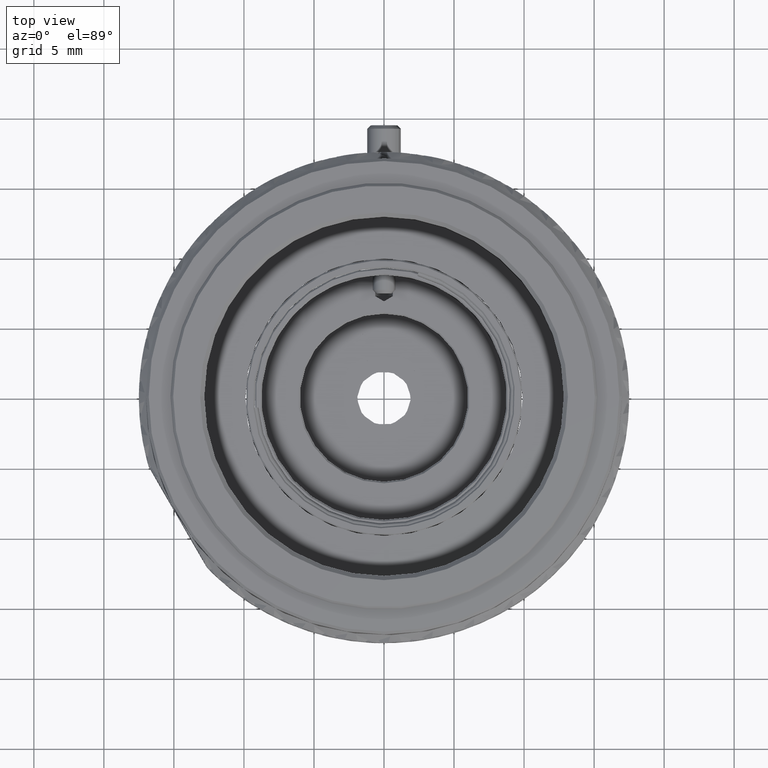
[diagram: clean part render]
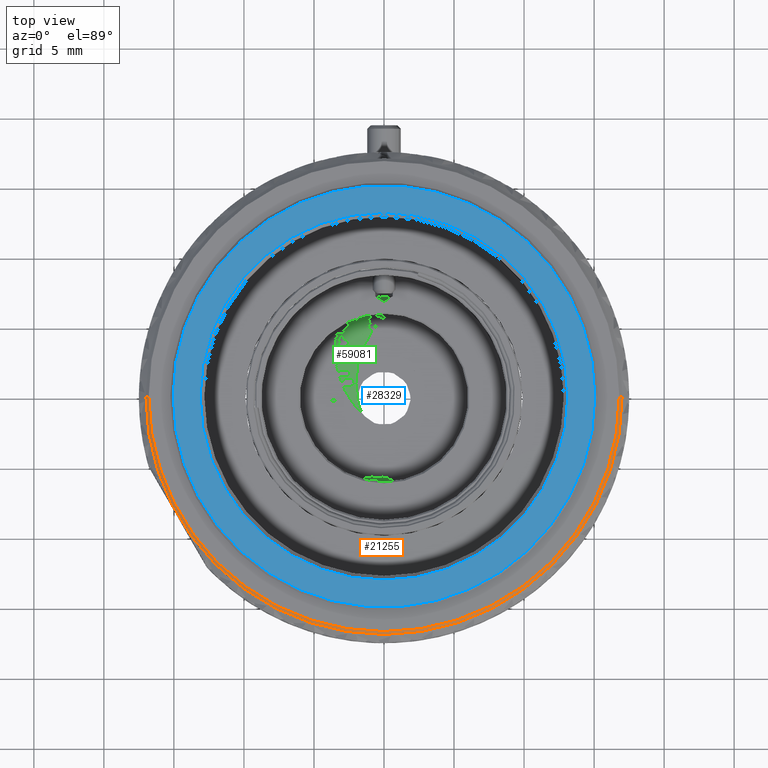
[diagram: same view with three faces highlighted in distinct colors, each labeled with its STEP entity id]
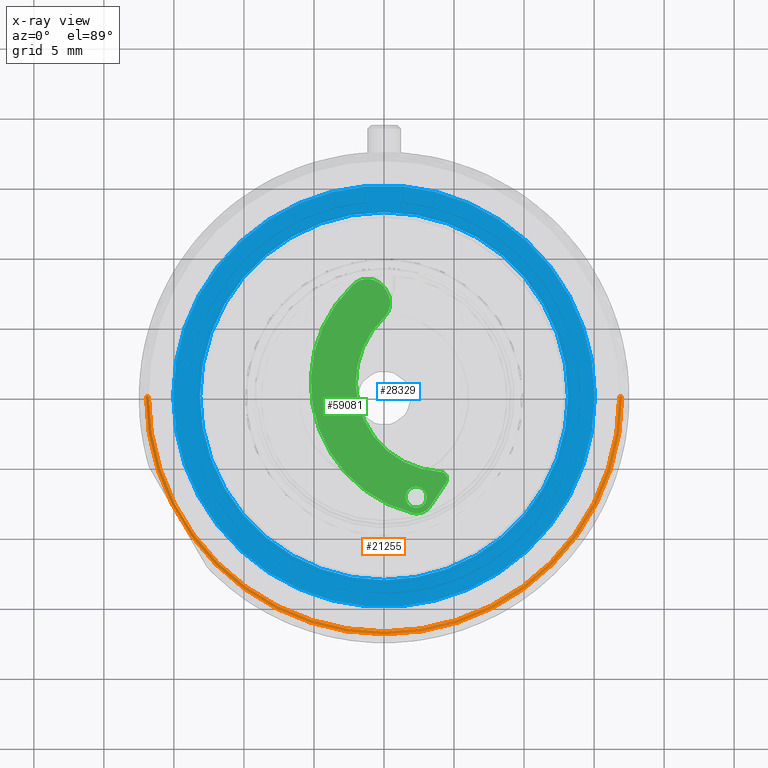
[diagram: x-ray of the same camera — body ghosted, the three highlighted faces saturated]
A machine part, top view with three faces highlighted in distinct colors.
The next image is the same camera in x-ray (body ghosted, the three faces saturated) — at least one of them is partly hidden behind the body in this view.
Their STEP definitions:

[orange] entity #21255 — the highlighted conical surface has half-angle 45 deg.
#1981 = FACE_OUTER_BOUND ( 'NONE', #70237, .T. ) ;
#5613 = CARTESIAN_POINT ( 'NONE',  ( -8.043846907927924015E-15, -2.054373064707883438E-14, 11.30000000000000071 ) ) ;
#7619 = ORIENTED_EDGE ( 'NONE', *, *, #48998, .F. ) ;
#8780 = DIRECTION ( 'NONE',  ( -0.7071067811865414665, 0.000000000000000000, -0.7071067811865536790 ) ) ;
#13270 = CARTESIAN_POINT ( 'NONE',  ( 16.80000000000000071, -1.847407755651980470E-14, 11.50000000000000000 ) ) ;
#13462 = ORIENTED_EDGE ( 'NONE', *, *, #33184, .T. ) ;
#14536 = EDGE_CURVE ( 'NONE', #42608, #80266, #46439, .T. ) ;
#15947 = CONICAL_SURFACE ( 'NONE', #40525, 16.80000000000000782, 0.7853981633974396193 ) ;
#17588 = VECTOR ( 'NONE', #49711, 1000.000000000000000 ) ;
#18491 = DIRECTION ( 'NONE',  ( 1.000000000000000000, 0.000000000000000000, 0.000000000000000000 ) ) ;
#20895 = DIRECTION ( 'NONE',  ( -1.000000000000000000, 0.000000000000000000, 0.000000000000000000 ) ) ;
#21255 = ADVANCED_FACE ( 'NONE', ( #1981 ), #15947, .T. ) ;
#22711 = CARTESIAN_POINT ( 'NONE',  ( -16.80000000000001492, -2.054373064707883438E-14, 11.50000000000000000 ) ) ;
#25403 = VECTOR ( 'NONE', #8780, 1000.000000000000000 ) ;
#25628 = CIRCLE ( 'NONE', #36531, 17.00000000000000355 ) ;
#32406 = ORIENTED_EDGE ( 'NONE', *, *, #14536, .F. ) ;
#33184 = EDGE_CURVE ( 'NONE', #42608, #54698, #61173, .T. ) ;
#33640 = DIRECTION ( 'NONE',  ( 0.000000000000000000, 0.000000000000000000, -1.000000000000000000 ) ) ;
#36531 = AXIS2_PLACEMENT_3D ( 'NONE', #5613, #43708, #18491 ) ;
#38728 = VERTEX_POINT ( 'NONE', #83481 ) ;
#39646 = CARTESIAN_POINT ( 'NONE',  ( -8.043846907927924015E-15, -2.054373064707883438E-14, 11.50000000000000000 ) ) ;
#40525 = AXIS2_PLACEMENT_3D ( 'NONE', #39646, #33640, #20895 ) ;
#42608 = VERTEX_POINT ( 'NONE', #22711 ) ;
#43708 = DIRECTION ( 'NONE',  ( 0.000000000000000000, 0.000000000000000000, -1.000000000000000000 ) ) ;
#46439 = CIRCLE ( 'NONE', #47801, 16.80000000000000782 ) ;
#47548 = DIRECTION ( 'NONE',  ( 1.000000000000000000, 0.000000000000000000, 0.000000000000000000 ) ) ;
#47801 = AXIS2_PLACEMENT_3D ( 'NONE', #60898, #80669, #47548 ) ;
#48887 = CARTESIAN_POINT ( 'NONE',  ( 16.80000000000000071, -1.848632402451127569E-14, 11.50000000000000000 ) ) ;
#48998 = EDGE_CURVE ( 'NONE', #38728, #54698, #25628, .T. ) ;
#49711 = DIRECTION ( 'NONE',  ( 0.7071067811865414665, 8.659560562354857670E-17, -0.7071067811865536790 ) ) ;
#50690 = EDGE_CURVE ( 'NONE', #80266, #38728, #68731, .T. ) ;
#54698 = VERTEX_POINT ( 'NONE', #63532 ) ;
#60323 = CARTESIAN_POINT ( 'NONE',  ( -16.80000000000001492, -2.054373064707883438E-14, 11.50000000000000000 ) ) ;
#60898 = CARTESIAN_POINT ( 'NONE',  ( -8.043846907927924015E-15, -2.054373064707883438E-14, 11.50000000000000000 ) ) ;
#61173 = LINE ( 'NONE', #60323, #25403 ) ;
#63532 = CARTESIAN_POINT ( 'NONE',  ( -17.00000000000001066, -2.054373064707883438E-14, 11.30000000000000071 ) ) ;
#68731 = LINE ( 'NONE', #48887, #17588 ) ;
#70237 = EDGE_LOOP ( 'NONE', ( #70564, #32406, #13462, #7619 ) ) ;
#70564 = ORIENTED_EDGE ( 'NONE', *, *, #50690, .F. ) ;
#80266 = VERTEX_POINT ( 'NONE', #13270 ) ;
#80669 = DIRECTION ( 'NONE',  ( 0.000000000000000000, 0.000000000000000000, 1.000000000000000000 ) ) ;
#83481 = CARTESIAN_POINT ( 'NONE',  ( 16.99999999999999645, -1.846183108852833055E-14, 11.30000000000000071 ) ) ;

[blue] entity #28329 — the highlighted planar face has unit normal (0, 0, 1).
#3692 = ORIENTED_EDGE ( 'NONE', *, *, #49986, .T. ) ;
#3756 = ORIENTED_EDGE ( 'NONE', *, *, #79034, .T. ) ;
#7274 = CARTESIAN_POINT ( 'NONE',  ( 15.05000000000000249, 1.855339900708240413E-15, 11.69999999999999929 ) ) ;
#9044 = DIRECTION ( 'NONE',  ( 1.000000000000000000, 0.000000000000000000, 0.000000000000000000 ) ) ;
#9793 = AXIS2_PLACEMENT_3D ( 'NONE', #62465, #75327, #49481 ) ;
#9829 = EDGE_LOOP ( 'NONE', ( #22816, #3756 ) ) ;
#11073 = AXIS2_PLACEMENT_3D ( 'NONE', #76095, #49424, #69278 ) ;
#11624 = AXIS2_PLACEMENT_3D ( 'NONE', #22348, #49719, #35984 ) ;
#20182 = FACE_OUTER_BOUND ( 'NONE', #35167, .T. ) ;
#22348 = CARTESIAN_POINT ( 'NONE',  ( 0.000000000000000000, 0.000000000000000000, 11.69999999999999929 ) ) ;
#22816 = ORIENTED_EDGE ( 'NONE', *, *, #66485, .T. ) ;
#26098 = PLANE ( 'NONE',  #67245 ) ;
#28084 = CARTESIAN_POINT ( 'NONE',  ( -13.12999999999999723, 1.607961247280474578E-15, 11.69999999999999929 ) ) ;
#28329 = ADVANCED_FACE ( 'NONE', ( #20182, #46259 ), #26098, .T. ) ;
#28992 = VERTEX_POINT ( 'NONE', #73492 ) ;
#35167 = EDGE_LOOP ( 'NONE', ( #84351, #3692 ) ) ;
#35352 = EDGE_CURVE ( 'NONE', #28992, #74320, #76058, .T. ) ;
#35984 = DIRECTION ( 'NONE',  ( 1.000000000000000000, 0.000000000000000000, 0.000000000000000000 ) ) ;
#46259 = FACE_BOUND ( 'NONE', #9829, .T. ) ;
#46633 = CIRCLE ( 'NONE', #11073, 13.12999999999999723 ) ;
#49424 = DIRECTION ( 'NONE',  ( -0.000000000000000000, -0.000000000000000000, -1.000000000000000000 ) ) ;
#49481 = DIRECTION ( 'NONE',  ( 1.000000000000000000, 0.000000000000000000, 0.000000000000000000 ) ) ;
#49719 = DIRECTION ( 'NONE',  ( 0.000000000000000000, 0.000000000000000000, 1.000000000000000000 ) ) ;
#49986 = EDGE_CURVE ( 'NONE', #74320, #28992, #56056, .T. ) ;
#51872 = DIRECTION ( 'NONE',  ( 1.000000000000000000, 0.000000000000000000, -0.000000000000000000 ) ) ;
#56056 = CIRCLE ( 'NONE', #61556, 15.05000000000000249 ) ;
#58307 = CARTESIAN_POINT ( 'NONE',  ( 0.000000000000000000, 0.000000000000000000, 11.69999999999999929 ) ) ;
#60001 = VERTEX_POINT ( 'NONE', #28084 ) ;
#61556 = AXIS2_PLACEMENT_3D ( 'NONE', #80773, #73459, #9044 ) ;
#61792 = CARTESIAN_POINT ( 'NONE',  ( 13.12999999999999723, 0.000000000000000000, 11.69999999999999929 ) ) ;
#62465 = CARTESIAN_POINT ( 'NONE',  ( 0.000000000000000000, 0.000000000000000000, 11.69999999999999929 ) ) ;
#66485 = EDGE_CURVE ( 'NONE', #74510, #60001, #46633, .T. ) ;
#67245 = AXIS2_PLACEMENT_3D ( 'NONE', #58307, #84562, #51872 ) ;
#69278 = DIRECTION ( 'NONE',  ( 1.000000000000000000, 0.000000000000000000, 0.000000000000000000 ) ) ;
#73459 = DIRECTION ( 'NONE',  ( 0.000000000000000000, 0.000000000000000000, 1.000000000000000000 ) ) ;
#73492 = CARTESIAN_POINT ( 'NONE',  ( -15.05000000000000249, 0.000000000000000000, 11.69999999999999929 ) ) ;
#74202 = CIRCLE ( 'NONE', #9793, 13.12999999999999723 ) ;
#74320 = VERTEX_POINT ( 'NONE', #7274 ) ;
#74510 = VERTEX_POINT ( 'NONE', #61792 ) ;
#75327 = DIRECTION ( 'NONE',  ( -0.000000000000000000, -0.000000000000000000, -1.000000000000000000 ) ) ;
#76058 = CIRCLE ( 'NONE', #11624, 15.05000000000000249 ) ;
#76095 = CARTESIAN_POINT ( 'NONE',  ( 0.000000000000000000, 0.000000000000000000, 11.69999999999999929 ) ) ;
#79034 = EDGE_CURVE ( 'NONE', #60001, #74510, #74202, .T. ) ;
#80773 = CARTESIAN_POINT ( 'NONE',  ( 0.000000000000000000, 0.000000000000000000, 11.69999999999999929 ) ) ;
#84351 = ORIENTED_EDGE ( 'NONE', *, *, #35352, .T. ) ;
#84562 = DIRECTION ( 'NONE',  ( 0.000000000000000000, 0.000000000000000000, 1.000000000000000000 ) ) ;

[green] entity #59081 — the highlighted planar face has unit normal (0, 0, 1).
#134 = EDGE_CURVE ( 'NONE', #13093, #42448, #28821, .T. ) ;
#1354 = AXIS2_PLACEMENT_3D ( 'NONE', #62264, #83718, #63113 ) ;
#2603 = DIRECTION ( 'NONE',  ( -0.5376088796797792169, 0.8431943385065228114, -2.019442564335963875E-16 ) ) ;
#2855 = CIRCLE ( 'NONE', #11063, 0.5000000000000000000 ) ;
#4016 = DIRECTION ( 'NONE',  ( -2.498706937816809290E-16, -3.988131143977950206E-16, -1.000000000000000000 ) ) ;
#5569 = ORIENTED_EDGE ( 'NONE', *, *, #67498, .T. ) ;
#6652 = DIRECTION ( 'NONE',  ( 0.9762165638642643639, 0.2167976485966777722, -3.162256336416054928E-16 ) ) ;
#7517 = DIRECTION ( 'NONE',  ( 0.9762165638642645860, 0.2167976485966775779, 0.000000000000000000 ) ) ;
#8238 = ORIENTED_EDGE ( 'NONE', *, *, #68532, .F. ) ;
#10601 = DIRECTION ( 'NONE',  ( 0.9762165638642644749, 0.2167976485966775779, -2.891205793294678326E-16 ) ) ;
#10741 = EDGE_CURVE ( 'NONE', #54904, #15948, #76525, .T. ) ;
#11063 = AXIS2_PLACEMENT_3D ( 'NONE', #66821, #21681, #7517 ) ;
#11471 = CARTESIAN_POINT ( 'NONE',  ( 3.029703165685517785, -6.908505083618756260, 3.650000000000007017 ) ) ;
#11843 = CIRCLE ( 'NONE', #73568, 6.374999999999999112 ) ;
#11903 = DIRECTION ( 'NONE',  ( 2.498706937816809290E-16, 3.988131143977950206E-16, 1.000000000000000000 ) ) ;
#13093 = VERTEX_POINT ( 'NONE', #31568 ) ;
#14455 = VERTEX_POINT ( 'NONE', #83676 ) ;
#15948 = VERTEX_POINT ( 'NONE', #68001 ) ;
#16031 = VERTEX_POINT ( 'NONE', #42521 ) ;
#17170 = CARTESIAN_POINT ( 'NONE',  ( -2.205189166200672624, 8.105528849715604167, 3.650000000000002576 ) ) ;
#17327 = CARTESIAN_POINT ( 'NONE',  ( 4.365600947727078740, 1.106620557795407356, 3.650000000000003908 ) ) ;
#17338 = PLANE ( 'NONE',  #40332 ) ;
#17417 = DIRECTION ( 'NONE',  ( 2.498706937816809290E-16, 3.988131143977950206E-16, 1.000000000000000000 ) ) ;
#17773 = DIRECTION ( 'NONE',  ( 2.498706937816809290E-16, 3.988131143977950206E-16, 1.000000000000000000 ) ) ;
#18400 = ORIENTED_EDGE ( 'NONE', *, *, #134, .T. ) ;
#18806 = ORIENTED_EDGE ( 'NONE', *, *, #21581, .T. ) ;
#20068 = DIRECTION ( 'NONE',  ( 0.9762165638642643639, 0.2167976485966780498, -5.782411586589369472E-16 ) ) ;
#20851 = DIRECTION ( 'NONE',  ( 2.498706937816809290E-16, 3.988131143977950206E-16, 1.000000000000000000 ) ) ;
#21071 = CARTESIAN_POINT ( 'NONE',  ( -1.055349677888403503, 6.818793464373001711, 3.650000000000003020 ) ) ;
#21581 = EDGE_CURVE ( 'NONE', #14455, #16031, #71857, .T. ) ;
#21681 = DIRECTION ( 'NONE',  ( 2.498706937816809290E-16, 3.988131143977950206E-16, 1.000000000000000000 ) ) ;
#22291 = CARTESIAN_POINT ( 'NONE',  ( 4.955544531943429476, -5.241024010660043864, 3.650000000000006128 ) ) ;
#23405 = CARTESIAN_POINT ( 'NONE',  ( 4.036350407187309308, -5.259871339753374286, 3.650000000000006573 ) ) ;
#24576 = DIRECTION ( 'NONE',  ( 0.9762165638642644749, 0.2167976485966777722, -3.401418580346680819E-16 ) ) ;
#25983 = CARTESIAN_POINT ( 'NONE',  ( 2.297540742787321122, -7.071103320066265852, 3.650000000000007461 ) ) ;
#25989 = ORIENTED_EDGE ( 'NONE', *, *, #85002, .T. ) ;
#26440 = EDGE_CURVE ( 'NONE', #16031, #50038, #54769, .T. ) ;
#26720 = AXIS2_PLACEMENT_3D ( 'NONE', #80067, #20851, #6652 ) ;
#27355 = EDGE_CURVE ( 'NONE', #51624, #52543, #2855, .T. ) ;
#28057 = CARTESIAN_POINT ( 'NONE',  ( 2.025707849864192500, -8.203852055910815011, 3.650000000000008349 ) ) ;
#28821 = CIRCLE ( 'NONE', #46699, 6.374999999999999112 ) ;
#31568 = CARTESIAN_POINT ( 'NONE',  ( -1.857779646907608662, -0.2754644520084137960, 3.650000000000006128 ) ) ;
#32249 = DIRECTION ( 'NONE',  ( 0.9762165638642644749, 0.2167976485966777722, -3.401418580346680819E-16 ) ) ;
#32996 = CARTESIAN_POINT ( 'NONE',  ( -0.02278765396164517121, 5.730760529786794066, 3.650000000000003020 ) ) ;
#34088 = ORIENTED_EDGE ( 'NONE', *, *, #71605, .T. ) ;
#39179 = ORIENTED_EDGE ( 'NONE', *, *, #27355, .T. ) ;
#39636 = CIRCLE ( 'NONE', #1354, 1.199999999999999956 ) ;
#40332 = AXIS2_PLACEMENT_3D ( 'NONE', #69314, #17773, #49458 ) ;
#40506 = VECTOR ( 'NONE', #40661, 1000.000000000000114 ) ;
#40661 = DIRECTION ( 'NONE',  ( 0.5537133330051301483, 0.8327073584713599042, -4.704513496880830530E-16 ) ) ;
#42448 = VERTEX_POINT ( 'NONE', #32996 ) ;
#42521 = CARTESIAN_POINT ( 'NONE',  ( 0.08628829686032137014, 7.818362748622743830, 3.650000000000002132 ) ) ;
#43065 = CARTESIAN_POINT ( 'NONE',  ( -1.178503210899462417, 7.011949429103073506, 3.650000000000002576 ) ) ;
#43129 = CIRCLE ( 'NONE', #26720, 9.599999999999999645 ) ;
#43626 = VERTEX_POINT ( 'NONE', #77145 ) ;
#44400 = VERTEX_POINT ( 'NONE', #28057 ) ;
#45575 = AXIS2_PLACEMENT_3D ( 'NONE', #48328, #68976, #54823 ) ;
#46699 = AXIS2_PLACEMENT_3D ( 'NONE', #53350, #79575, #32249 ) ;
#48328 = CARTESIAN_POINT ( 'NONE',  ( 2.297540742787321122, -7.071103320066265852, 3.650000000000007461 ) ) ;
#48418 = CIRCLE ( 'NONE', #70363, 1.500000000000000000 ) ;
#49458 = DIRECTION ( 'NONE',  ( 0.9762165638642644749, 0.2167976485966777722, -3.303896555248922626E-16 ) ) ;
#50038 = VERTEX_POINT ( 'NONE', #17170 ) ;
#51624 = VERTEX_POINT ( 'NONE', #63139 ) ;
#52077 = CARTESIAN_POINT ( 'NONE',  ( 0.9383443397684867460, 6.481984465774490722, 3.650000000000002132 ) ) ;
#52543 = VERTEX_POINT ( 'NONE', #23405 ) ;
#53350 = CARTESIAN_POINT ( 'NONE',  ( 4.365600947727078740, 1.106620557795407356, 3.650000000000003908 ) ) ;
#54769 = CIRCLE ( 'NONE', #72540, 1.500000000000000000 ) ;
#54823 = DIRECTION ( 'NONE',  ( 0.9762165638642643639, 0.2167976485966780498, -5.782411586589369472E-16 ) ) ;
#54904 = VERTEX_POINT ( 'NONE', #11471 ) ;
#55753 = LINE ( 'NONE', #22291, #40506 ) ;
#56367 = FACE_OUTER_BOUND ( 'NONE', #59202, .T. ) ;
#57321 = AXIS2_PLACEMENT_3D ( 'NONE', #25983, #11903, #20068 ) ;
#59081 = ADVANCED_FACE ( 'NONE', ( #81776, #56367 ), #17338, .T. ) ;
#59202 = EDGE_LOOP ( 'NONE', ( #34088, #39179, #25989, #18400, #5569, #18806, #80354, #72483, #63865 ) ) ;
#62264 = CARTESIAN_POINT ( 'NONE',  ( 2.318194487097052559, -7.040042979197538742, 3.650000000000007461 ) ) ;
#63113 = DIRECTION ( 'NONE',  ( 0.9762165638642643639, 0.2167976485966778555, -3.614007241618348278E-16 ) ) ;
#63139 = CARTESIAN_POINT ( 'NONE',  ( 4.426880514615949558, -6.036060704102903074, 3.650000000000006573 ) ) ;
#63865 = ORIENTED_EDGE ( 'NONE', *, *, #76422, .T. ) ;
#66740 = VECTOR ( 'NONE', #2603, 1000.000000000000000 ) ;
#66821 = CARTESIAN_POINT ( 'NONE',  ( 4.010526835380267663, -5.759204037600337500, 3.650000000000006573 ) ) ;
#67498 = EDGE_CURVE ( 'NONE', #42448, #14455, #48418, .T. ) ;
#67918 = EDGE_LOOP ( 'NONE', ( #8238, #79853 ) ) ;
#68001 = CARTESIAN_POINT ( 'NONE',  ( 1.565378319889124237, -7.233701556513772779, 3.650000000000007905 ) ) ;
#68532 = EDGE_CURVE ( 'NONE', #15948, #54904, #82681, .T. ) ;
#68976 = DIRECTION ( 'NONE',  ( 2.498706937816809290E-16, 3.988131143977950206E-16, 1.000000000000000000 ) ) ;
#69314 = CARTESIAN_POINT ( 'NONE',  ( 4.365600947727078740, 1.106620557795407356, 3.650000000000003908 ) ) ;
#69380 = DIRECTION ( 'NONE',  ( 0.9762165638642644749, 0.2167976485966775779, -2.891205793294678326E-16 ) ) ;
#69403 = DIRECTION ( 'NONE',  ( 2.498706937816809290E-16, 3.988131143977950206E-16, 1.000000000000000000 ) ) ;
#70363 = AXIS2_PLACEMENT_3D ( 'NONE', #21071, #69403, #10601 ) ;
#70838 = EDGE_CURVE ( 'NONE', #50038, #44400, #43129, .T. ) ;
#71605 = EDGE_CURVE ( 'NONE', #43626, #51624, #55753, .T. ) ;
#71857 = LINE ( 'NONE', #52077, #66740 ) ;
#72483 = ORIENTED_EDGE ( 'NONE', *, *, #70838, .T. ) ;
#72540 = AXIS2_PLACEMENT_3D ( 'NONE', #43065, #17417, #69380 ) ;
#73568 = AXIS2_PLACEMENT_3D ( 'NONE', #17327, #4016, #24576 ) ;
#76422 = EDGE_CURVE ( 'NONE', #44400, #43626, #39636, .T. ) ;
#76525 = CIRCLE ( 'NONE', #57321, 0.7499999999999983347 ) ;
#77145 = CARTESIAN_POINT ( 'NONE',  ( 3.317443317262685376, -7.704498978803696829, 3.650000000000007461 ) ) ;
#79575 = DIRECTION ( 'NONE',  ( -2.498706937816809290E-16, -3.988131143977950206E-16, -1.000000000000000000 ) ) ;
#79853 = ORIENTED_EDGE ( 'NONE', *, *, #10741, .F. ) ;
#80067 = CARTESIAN_POINT ( 'NONE',  ( 4.365600947727078740, 1.106620557795407356, 3.650000000000003908 ) ) ;
#80354 = ORIENTED_EDGE ( 'NONE', *, *, #26440, .T. ) ;
#81776 = FACE_BOUND ( 'NONE', #67918, .T. ) ;
#82681 = CIRCLE ( 'NONE', #45575, 0.7499999999999983347 ) ;
#83676 = CARTESIAN_POINT ( 'NONE',  ( 0.2094418298713804916, 7.625206783892670259, 3.650000000000002132 ) ) ;
#83718 = DIRECTION ( 'NONE',  ( 2.498706937816809290E-16, 3.988131143977950206E-16, 1.000000000000000000 ) ) ;
#85002 = EDGE_CURVE ( 'NONE', #52543, #13093, #11843, .T. ) ;